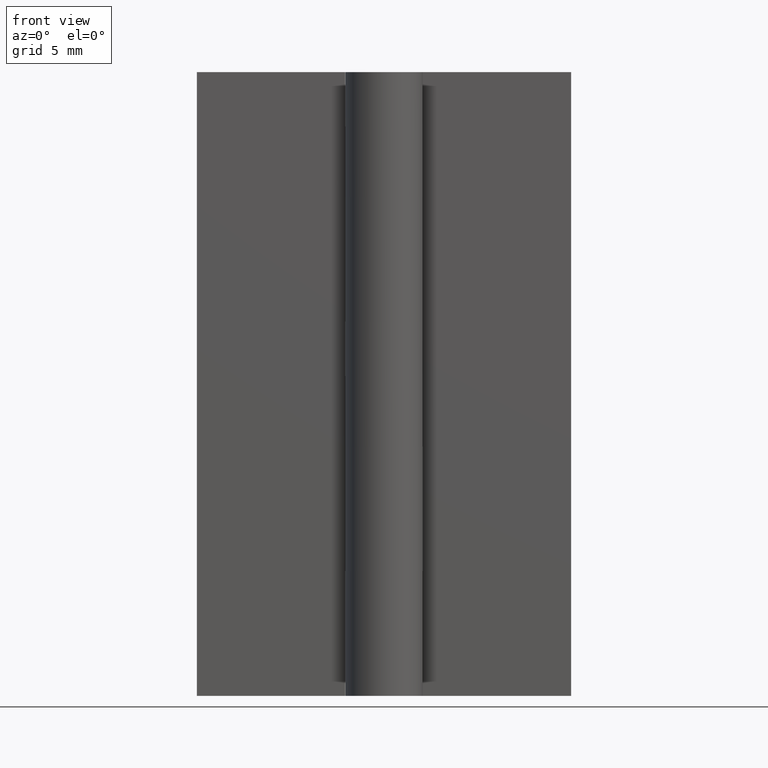
[diagram: clean part render]
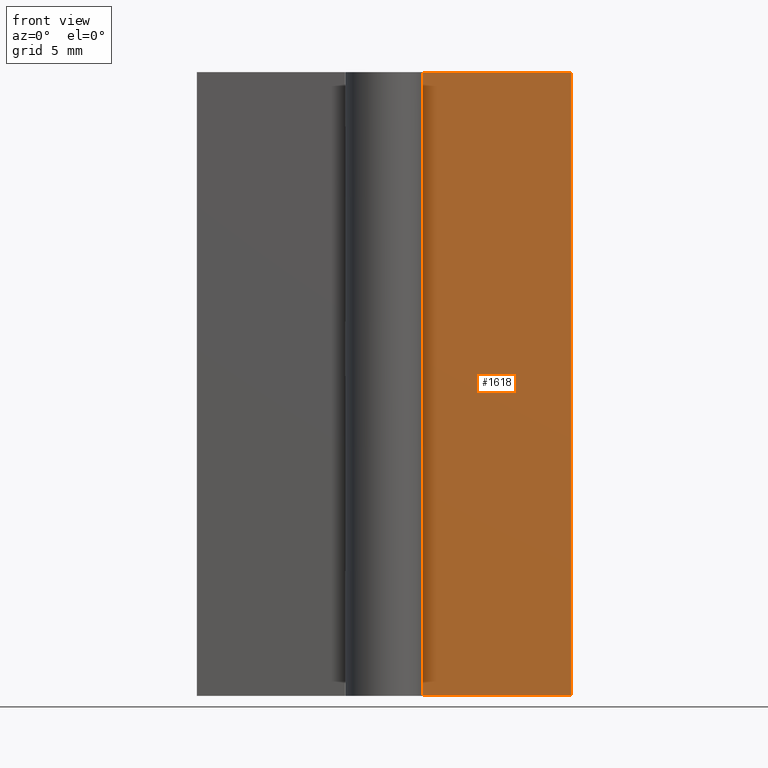
[diagram: same view with one face highlighted and labeled with its STEP entity id]
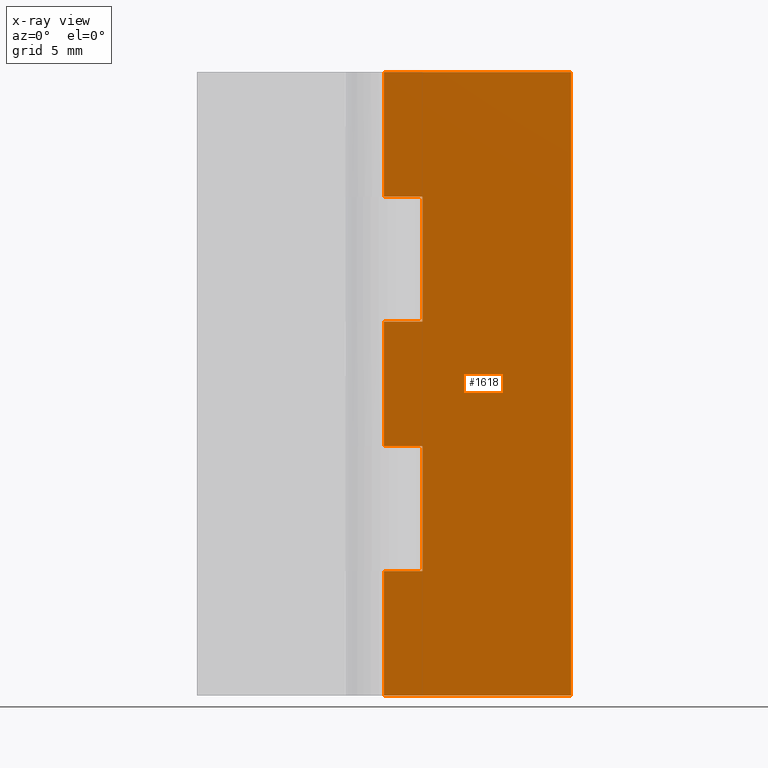
[diagram: x-ray of the same camera — body ghosted, the highlighted face saturated]
A machine part, front view. The second image highlights one B-rep face of the part: STEP entity #1618.
The next image is the same camera in x-ray: the body ghosted, the highlighted face saturated — about 0% of this face is hidden behind the body in this view.
In plain terms, the highlighted face is a freeform B-spline surface patch.
Its self-contained STEP definition (entity closure, byte-faithful):
#782=CARTESIAN_POINT('',(3.099998999999895,1.499999999999946,20.0));
#783=VERTEX_POINT('',#782);
#789=CARTESIAN_POINT('',(-2.755364E-016,1.500000000000000,20.0));
#790=VERTEX_POINT('',#789);
#791=CARTESIAN_POINT('',(3.099998999999895,1.499999999999946,20.0));
#792=CARTESIAN_POINT('',(-2.755364E-016,1.500000000000000,20.0));
#793=QUASI_UNIFORM_CURVE('',1,(#791,#792),.UNSPECIFIED.,.F.,.U.);
#794=EDGE_CURVE('',#783,#790,#793,.T.);
#881=CARTESIAN_POINT('',(-2.755364E-016,1.500000000000000,10.000000000000121));
#882=VERTEX_POINT('',#881);
#902=CARTESIAN_POINT('',(3.099998999999895,1.499999999999946,10.000000000000121));
#903=VERTEX_POINT('',#902);
#904=CARTESIAN_POINT('',(-2.755364E-016,1.500000000000000,10.000000000000121));
#905=CARTESIAN_POINT('',(3.099998999999895,1.499999999999946,10.000000000000121));
#906=QUASI_UNIFORM_CURVE('',1,(#904,#905),.UNSPECIFIED.,.F.,.U.);
#907=EDGE_CURVE('',#882,#903,#906,.T.);
#936=CARTESIAN_POINT('',(3.099998999999895,1.499999999999946,10.000000000000121));
#937=CARTESIAN_POINT('',(3.099998999999895,1.499999999999946,20.0));
#938=QUASI_UNIFORM_CURVE('',1,(#936,#937),.UNSPECIFIED.,.F.,.U.);
#939=EDGE_CURVE('',#903,#783,#938,.T.);
#986=CARTESIAN_POINT('',(-2.755364E-016,1.500000000000000,29.999993000000099));
#987=VERTEX_POINT('',#986);
#1007=CARTESIAN_POINT('',(3.099998999999895,1.499999999999946,29.999993000000099));
#1008=VERTEX_POINT('',#1007);
#1009=CARTESIAN_POINT('',(-2.755364E-016,1.500000000000000,29.999993000000099));
#1010=CARTESIAN_POINT('',(3.099998999999895,1.499999999999946,29.999993000000099));
#1011=QUASI_UNIFORM_CURVE('',1,(#1009,#1010),.UNSPECIFIED.,.F.,.U.);
#1012=EDGE_CURVE('',#987,#1008,#1011,.T.);
#1057=CARTESIAN_POINT('',(3.099998999999895,1.499999999999946,39.999992999999897));
#1058=VERTEX_POINT('',#1057);
#1064=CARTESIAN_POINT('',(-2.755364E-016,1.500000000000000,39.999992999999897));
#1065=VERTEX_POINT('',#1064);
#1066=CARTESIAN_POINT('',(3.099998999999895,1.499999999999946,39.999992999999897));
#1067=CARTESIAN_POINT('',(-2.755364E-016,1.500000000000000,39.999992999999897));
#1068=QUASI_UNIFORM_CURVE('',1,(#1066,#1067),.UNSPECIFIED.,.F.,.U.);
#1069=EDGE_CURVE('',#1058,#1065,#1068,.T.);
#1126=CARTESIAN_POINT('',(3.099998999999895,1.499999999999946,29.999993000000099));
#1127=CARTESIAN_POINT('',(3.099998999999895,1.499999999999946,39.999992999999897));
#1128=QUASI_UNIFORM_CURVE('',1,(#1126,#1127),.UNSPECIFIED.,.F.,.U.);
#1129=EDGE_CURVE('',#1008,#1058,#1128,.T.);
#1146=CARTESIAN_POINT('',(-2.755364E-016,1.500000000000000,0.0));
#1147=VERTEX_POINT('',#1146);
#1148=CARTESIAN_POINT('',(15.000007999999999,1.500000000000000,0.0));
#1149=VERTEX_POINT('',#1148);
#1150=CARTESIAN_POINT('',(-2.755364E-016,1.500000000000000,0.0));
#1151=CARTESIAN_POINT('',(15.000007999999999,1.500000000000000,0.0));
#1152=QUASI_UNIFORM_CURVE('',1,(#1150,#1151),.UNSPECIFIED.,.F.,.U.);
#1153=EDGE_CURVE('',#1147,#1149,#1152,.T.);
#1224=CARTESIAN_POINT('',(-2.755364E-016,1.500000000000000,49.999993000000003));
#1225=VERTEX_POINT('',#1224);
#1226=CARTESIAN_POINT('',(15.000007999999999,1.500000000000000,49.999993000000003));
#1227=VERTEX_POINT('',#1226);
#1228=CARTESIAN_POINT('',(-2.755364E-016,1.500000000000000,49.999993000000003));
#1229=CARTESIAN_POINT('',(15.000007999999999,1.500000000000000,49.999993000000003));
#1230=QUASI_UNIFORM_CURVE('',1,(#1228,#1229),.UNSPECIFIED.,.F.,.U.);
#1231=EDGE_CURVE('',#1225,#1227,#1230,.T.);
#1309=CARTESIAN_POINT('',(15.000007999999999,1.500000000000000,49.999993000000003));
#1310=CARTESIAN_POINT('',(15.000007999999999,1.500000000000000,0.0));
#1311=QUASI_UNIFORM_CURVE('',1,(#1309,#1310),.UNSPECIFIED.,.F.,.U.);
#1312=EDGE_CURVE('',#1227,#1149,#1311,.T.);
#1340=CARTESIAN_POINT('',(-2.755364E-016,1.500000000000000,49.999993000000003));
#1341=CARTESIAN_POINT('',(-2.755364E-016,1.500000000000000,39.999992999999897));
#1342=QUASI_UNIFORM_CURVE('',1,(#1340,#1341),.UNSPECIFIED.,.F.,.U.);
#1343=EDGE_CURVE('',#1225,#1065,#1342,.T.);
#1427=CARTESIAN_POINT('',(-2.755364E-016,1.500000000000000,29.999993000000099));
#1428=CARTESIAN_POINT('',(-2.755364E-016,1.500000000000000,20.0));
#1429=QUASI_UNIFORM_CURVE('',1,(#1427,#1428),.UNSPECIFIED.,.F.,.U.);
#1430=EDGE_CURVE('',#987,#790,#1429,.T.);
#1470=CARTESIAN_POINT('',(-2.755364E-016,1.500000000000000,10.000000000000121));
#1471=CARTESIAN_POINT('',(-2.755364E-016,1.500000000000000,0.0));
#1472=QUASI_UNIFORM_CURVE('',1,(#1470,#1471),.UNSPECIFIED.,.F.,.U.);
#1473=EDGE_CURVE('',#882,#1147,#1472,.T.);
#1599=CARTESIAN_POINT('',(-0.749250316936508,1.500000000000000,-2.497499374805216));
#1600=CARTESIAN_POINT('',(-0.749250316936508,1.500000000000000,52.497490139631353));
#1601=CARTESIAN_POINT('',(15.749257646383899,1.500000000000000,-2.497499374805216));
#1602=CARTESIAN_POINT('',(15.749257646383899,1.500000000000000,52.497490139631353));
#1603=B_SPLINE_SURFACE_WITH_KNOTS('',1,1,((#1599,#1601),(#1600,#1602)),.UNSPECIFIED.,.F.,.F.,.U.,(2,2),(2,2),(0.0,54.994989514436568),(0.0,16.498507963320410),.UNSPECIFIED.);
#1604=ORIENTED_EDGE('',*,*,#907,.F.);
#1605=ORIENTED_EDGE('',*,*,#1473,.T.);
#1606=ORIENTED_EDGE('',*,*,#1153,.T.);
#1607=ORIENTED_EDGE('',*,*,#1312,.F.);
#1608=ORIENTED_EDGE('',*,*,#1231,.F.);
#1609=ORIENTED_EDGE('',*,*,#1343,.T.);
#1610=ORIENTED_EDGE('',*,*,#1069,.F.);
#1611=ORIENTED_EDGE('',*,*,#1129,.F.);
#1612=ORIENTED_EDGE('',*,*,#1012,.F.);
#1613=ORIENTED_EDGE('',*,*,#1430,.T.);
#1614=ORIENTED_EDGE('',*,*,#794,.F.);
#1615=ORIENTED_EDGE('',*,*,#939,.F.);
#1616=EDGE_LOOP('',(#1604,#1605,#1606,#1607,#1608,#1609,#1610,#1611,#1612,#1613,#1614,#1615));
#1617=FACE_OUTER_BOUND('',#1616,.T.);
#1618=ADVANCED_FACE('',(#1617),#1603,.F.);